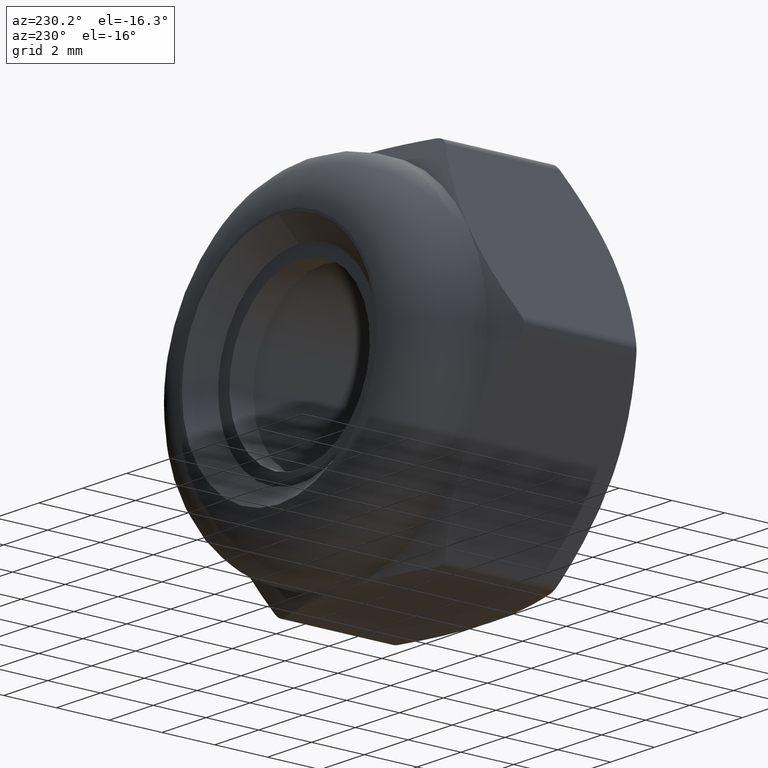
[diagram: clean part render]
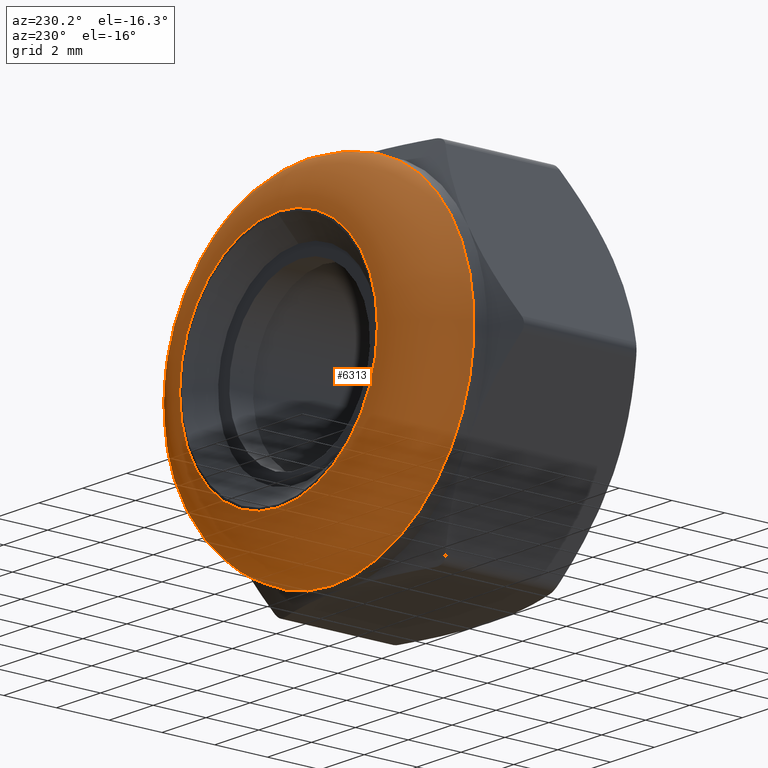
[diagram: same view with one face highlighted and labeled with its STEP entity id]
A machine part, auxiliary view. The second image highlights one B-rep face of the part: STEP entity #6313.
In plain terms, the highlighted toroidal blend (fillet) surface has major radius 4.5 mm and minor (blend) radius 2 mm.
Its self-contained STEP definition (entity closure, byte-faithful):
#463 = ORIENTED_EDGE ( 'NONE', *, *, #1916, .F. ) ;
#500 = FACE_OUTER_BOUND ( 'NONE', #12161, .T. ) ;
#1738 = AXIS2_PLACEMENT_3D ( 'NONE', #13026, #11769, #2834 ) ;
#1916 = EDGE_CURVE ( 'NONE', #7016, #7016, #3980, .T. ) ;
#2419 = DIRECTION ( 'NONE',  ( 0.000000000000000000, 1.000000000000000000, 0.000000000000000000 ) ) ;
#2834 = DIRECTION ( 'NONE',  ( 0.000000000000000000, 0.000000000000000000, 1.000000000000000000 ) ) ;
#3414 = AXIS2_PLACEMENT_3D ( 'NONE', #13181, #12072, #4303 ) ;
#3456 = CARTESIAN_POINT ( 'NONE',  ( 0.000000000000000000, 3.249999999999999556, 0.000000000000000000 ) ) ;
#3902 = FACE_OUTER_BOUND ( 'NONE', #8338, .T. ) ;
#3980 = CIRCLE ( 'NONE', #1738, 4.499999999999999112 ) ;
#4303 = DIRECTION ( 'NONE',  ( 0.000000000000000000, 0.000000000000000000, 1.000000000000000000 ) ) ;
#4917 = ORIENTED_EDGE ( 'NONE', *, *, #13671, .F. ) ;
#6131 = CARTESIAN_POINT ( 'NONE',  ( 0.000000000000000000, 5.249999999999999112, 4.499999999999999112 ) ) ;
#6139 = DIRECTION ( 'NONE',  ( 0.000000000000000000, 0.000000000000000000, 1.000000000000000000 ) ) ;
#6313 = ADVANCED_FACE ( 'NONE', ( #3902, #500 ), #9908, .T. ) ;
#7016 = VERTEX_POINT ( 'NONE', #6131 ) ;
#7838 = AXIS2_PLACEMENT_3D ( 'NONE', #3456, #2419, #6139 ) ;
#8338 = EDGE_LOOP ( 'NONE', ( #4917 ) ) ;
#8812 = CIRCLE ( 'NONE', #3414, 6.499999999999999112 ) ;
#9908 = TOROIDAL_SURFACE ( 'NONE', #7838, 4.499999999999999112, 2.000000000000000000 ) ;
#11769 = DIRECTION ( 'NONE',  ( 0.000000000000000000, 1.000000000000000000, 0.000000000000000000 ) ) ;
#12072 = DIRECTION ( 'NONE',  ( -0.000000000000000000, -1.000000000000000000, -0.000000000000000000 ) ) ;
#12161 = EDGE_LOOP ( 'NONE', ( #463 ) ) ;
#13026 = CARTESIAN_POINT ( 'NONE',  ( 0.000000000000000000, 5.249999999999999112, 0.000000000000000000 ) ) ;
#13181 = CARTESIAN_POINT ( 'NONE',  ( 0.000000000000000000, 3.249999999999999556, 0.000000000000000000 ) ) ;
#13232 = VERTEX_POINT ( 'NONE', #16192 ) ;
#13671 = EDGE_CURVE ( 'NONE', #13232, #13232, #8812, .T. ) ;
#16192 = CARTESIAN_POINT ( 'NONE',  ( 0.000000000000000000, 3.249999999999999556, 6.499999999999999112 ) ) ;